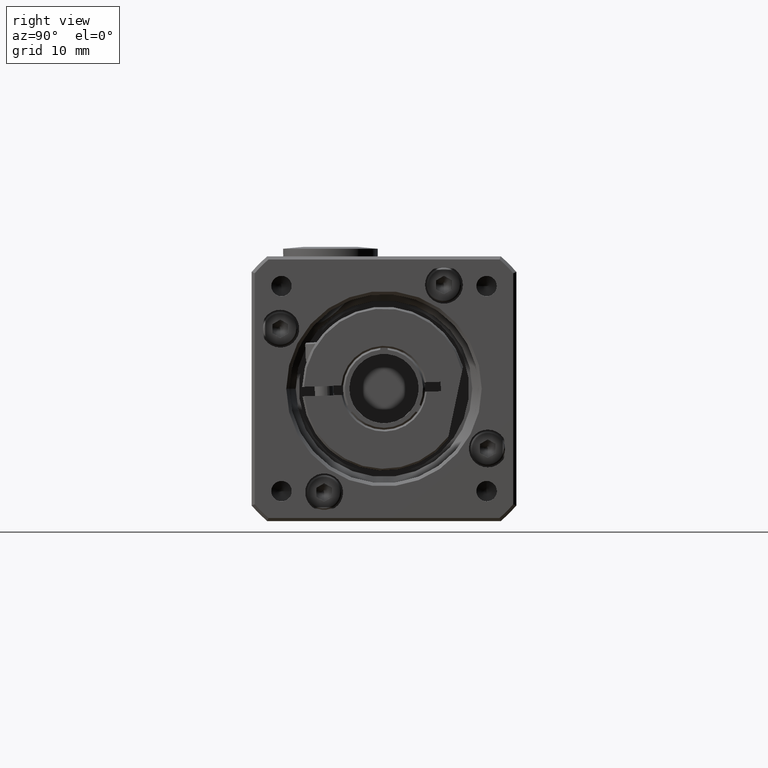
[diagram: clean part render]
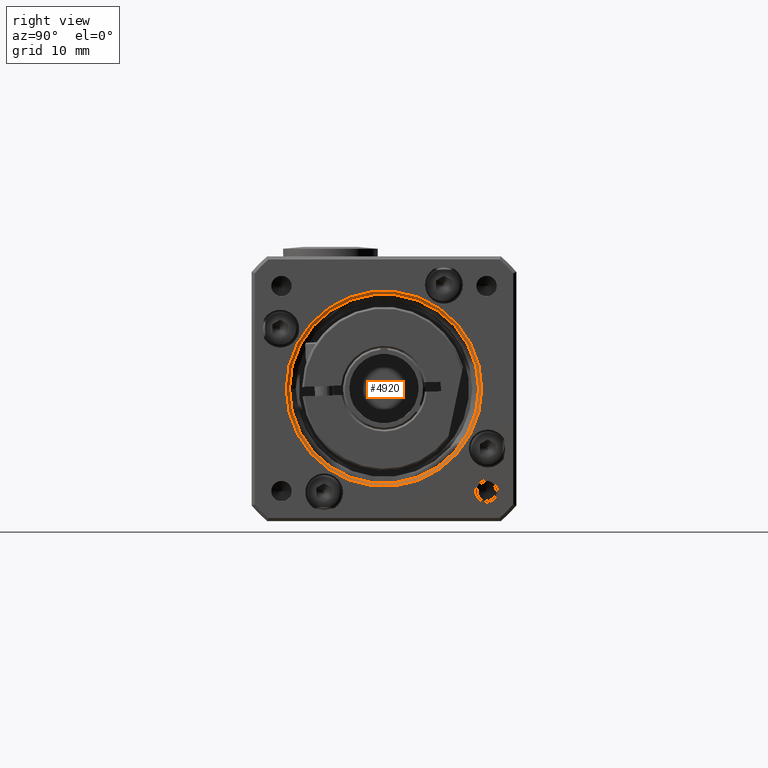
[diagram: same view with one face highlighted and labeled with its STEP entity id]
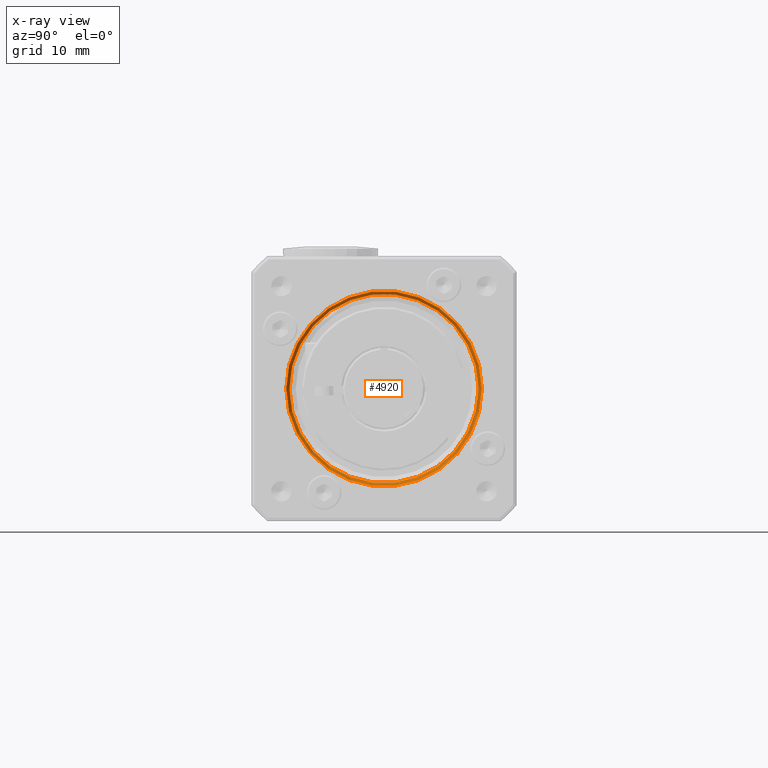
[diagram: x-ray of the same camera — body ghosted, the highlighted face saturated]
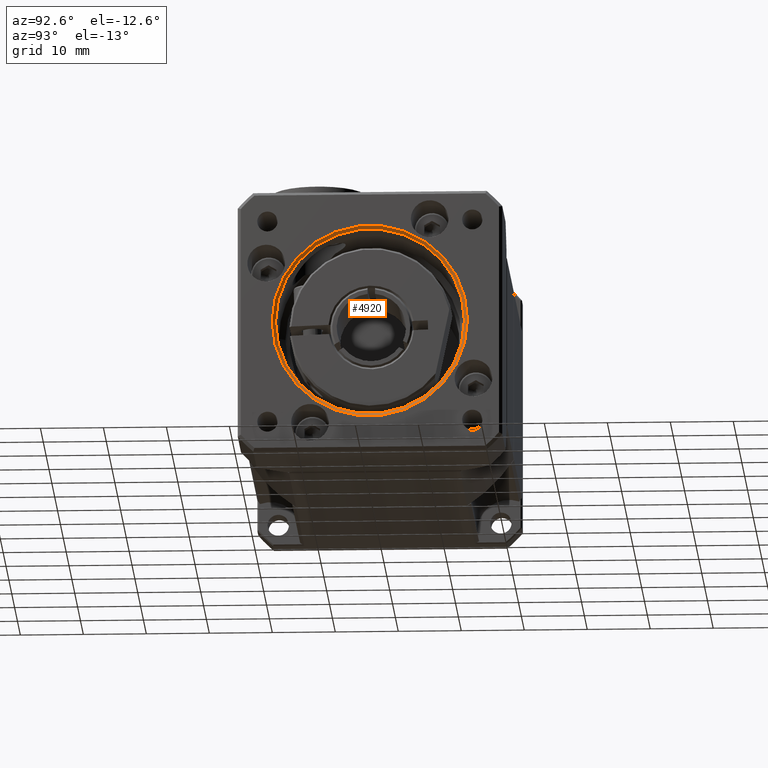
[diagram: same view with one face highlighted and labeled with its STEP entity id]
A machine part, right view. The second image highlights one B-rep face of the part: STEP entity #4920.
The next image is the same camera in x-ray: the body ghosted, the highlighted face saturated — about 0% of this face is hidden behind the body in this view.
A second angle (auxiliary view) of the same face is appended — the face is thin or edge-on in the first view.
In plain terms, the highlighted conical surface has half-angle 45 deg.
Its self-contained STEP definition (entity closure, byte-faithful):
#184=CONICAL_SURFACE('',#5404,15.25,45.);
#902=FACE_BOUND('',#1518,.T.);
#1133=FACE_OUTER_BOUND('',#1517,.T.);
#1517=EDGE_LOOP('',(#3812));
#1518=EDGE_LOOP('',(#3813));
#1914=CIRCLE('',#5367,15.5);
#1939=CIRCLE('',#5405,15.);
#2301=VERTEX_POINT('',#8065);
#2327=VERTEX_POINT('',#8174);
#2829=EDGE_CURVE('',#2301,#2301,#1914,.T.);
#2875=EDGE_CURVE('',#2327,#2327,#1939,.T.);
#3812=ORIENTED_EDGE('',*,*,#2875,.T.);
#3813=ORIENTED_EDGE('',*,*,#2829,.T.);
#4920=ADVANCED_FACE('',(#1133,#902),#184,.F.);
#5367=AXIS2_PLACEMENT_3D('',#8066,#6375,#6376);
#5404=AXIS2_PLACEMENT_3D('',#8173,#6462,#6463);
#5405=AXIS2_PLACEMENT_3D('',#8175,#6464,#6465);
#6375=DIRECTION('center_axis',(1.,-3.09496634439259E-16,-1.95245496793417E-15));
#6376=DIRECTION('ref_axis',(3.09496634439242E-16,1.,-8.39606162372704E-15));
#6462=DIRECTION('center_axis',(1.,-3.09496634439259E-16,-1.95245496793417E-15));
#6463=DIRECTION('ref_axis',(3.09496634439242E-16,1.,-8.39606162372704E-15));
#6464=DIRECTION('center_axis',(-1.,3.09496634439259E-16,1.95245496793417E-15));
#6465=DIRECTION('ref_axis',(3.09496634439243E-16,1.,-8.39606162372704E-15));
#8065=CARTESIAN_POINT('',(34.2159950143862,-54.3674851319124,-27.3477552941332));
#8066=CARTESIAN_POINT('Origin',(34.2159950143862,-38.8674851319124,-27.3477552941333));
#8173=CARTESIAN_POINT('Origin',(33.9659950143862,-38.8674851319124,-27.3477552941333));
#8174=CARTESIAN_POINT('',(33.7159950143862,-53.8674851319124,-27.3477552941332));
#8175=CARTESIAN_POINT('Origin',(33.7159950143862,-38.8674851319124,-27.3477552941333));